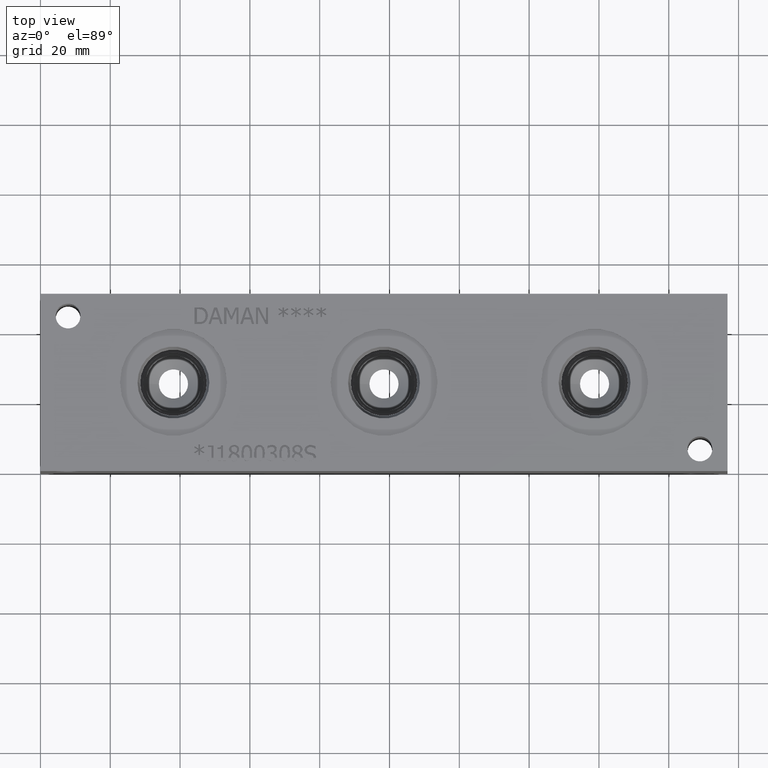
[diagram: clean part render]
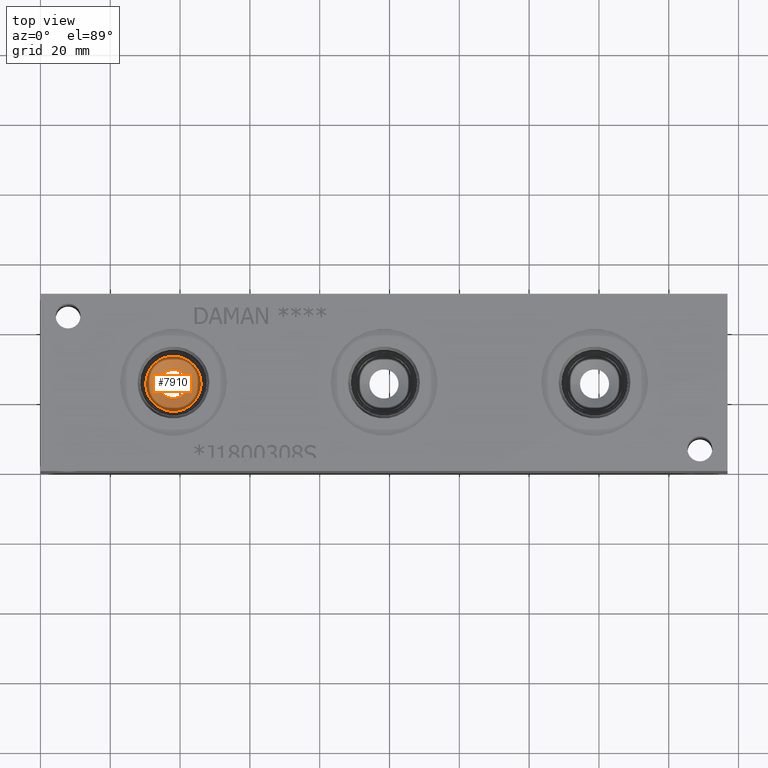
[diagram: same view with one face highlighted and labeled with its STEP entity id]
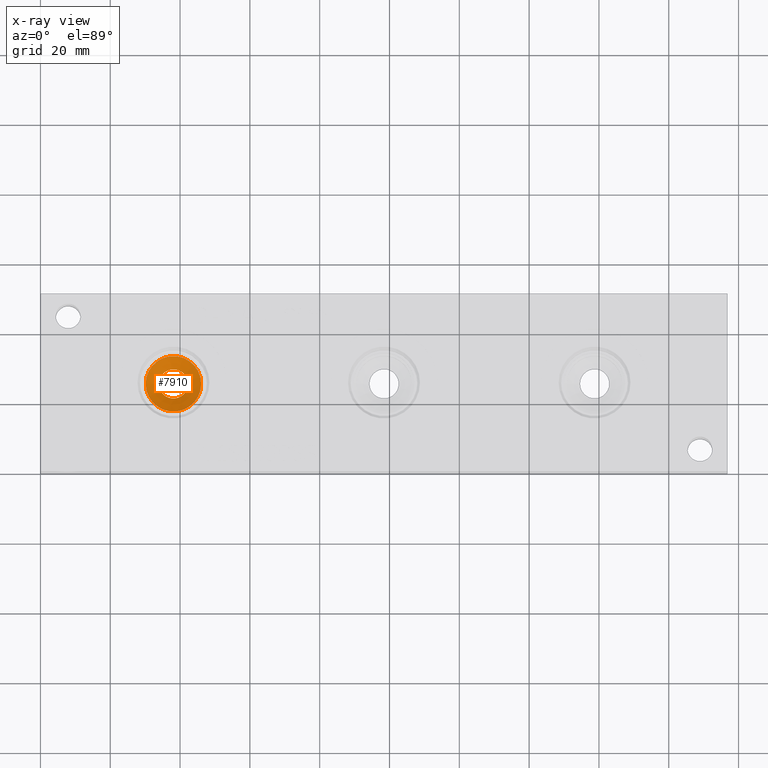
[diagram: x-ray of the same camera — body ghosted, the highlighted face saturated]
A machine part, top view. The second image highlights one B-rep face of the part: STEP entity #7910.
The next image is the same camera in x-ray: the body ghosted, the highlighted face saturated — about 0% of this face is hidden behind the body in this view.
In plain terms, the highlighted conical surface has half-angle 60 deg.
Its self-contained STEP definition (entity closure, byte-faithful):
#34=CONICAL_SURFACE('',#8327,3.96875,1.0471975511966);
#129=CIRCLE('',#8218,4.17506995376659);
#196=CIRCLE('',#8328,7.9375);
#197=CIRCLE('',#8329,7.9375);
#878=FACE_OUTER_BOUND('',#1328,.T.);
#1328=EDGE_LOOP('',(#6989,#6990,#6991,#6992,#6993));
#2058=LINE('',#13697,#2777);
#2777=VECTOR('',#9841,3.96875);
#3688=VERTEX_POINT('',#13483);
#3754=VERTEX_POINT('',#13694);
#3755=VERTEX_POINT('',#13695);
#4742=EDGE_CURVE('',#3688,#3688,#129,.T.);
#4843=EDGE_CURVE('',#3754,#3755,#196,.T.);
#4844=EDGE_CURVE('',#3755,#3688,#2058,.T.);
#4845=EDGE_CURVE('',#3755,#3754,#197,.T.);
#6989=ORIENTED_EDGE('',*,*,#4843,.T.);
#6990=ORIENTED_EDGE('',*,*,#4844,.T.);
#6991=ORIENTED_EDGE('',*,*,#4742,.T.);
#6992=ORIENTED_EDGE('',*,*,#4844,.F.);
#6993=ORIENTED_EDGE('',*,*,#4845,.T.);
#7910=ADVANCED_FACE('',(#878),#34,.F.);
#8218=AXIS2_PLACEMENT_3D('',#13485,#9585,#9586);
#8327=AXIS2_PLACEMENT_3D('',#13693,#9837,#9838);
#8328=AXIS2_PLACEMENT_3D('',#13696,#9839,#9840);
#8329=AXIS2_PLACEMENT_3D('',#13698,#9842,#9843);
#9585=DIRECTION('center_axis',(0.,0.,-1.));
#9586=DIRECTION('ref_axis',(1.,0.,0.));
#9837=DIRECTION('center_axis',(0.,0.,1.));
#9838=DIRECTION('ref_axis',(1.,0.,0.));
#9839=DIRECTION('center_axis',(0.,0.,1.));
#9840=DIRECTION('ref_axis',(1.,0.,0.));
#9841=DIRECTION('',(0.866025403784439,1.06057523872491E-16,-0.5));
#9842=DIRECTION('center_axis',(0.,0.,1.));
#9843=DIRECTION('ref_axis',(1.,0.,0.));
#13483=CARTESIAN_POINT('',(33.9249300462334,25.4,25.39516));
#13485=CARTESIAN_POINT('Origin',(38.1,25.4,25.39516));
#13693=CARTESIAN_POINT('Origin',(38.1,25.4,25.2760411191537));
#13694=CARTESIAN_POINT('',(46.0375,25.4,27.5674));
#13695=CARTESIAN_POINT('',(30.1625,25.4,27.5674));
#13696=CARTESIAN_POINT('Origin',(38.1,25.4,27.5674));
#13697=CARTESIAN_POINT('',(34.13125,25.4,25.2760411191537));
#13698=CARTESIAN_POINT('Origin',(38.1,25.4,27.5674));